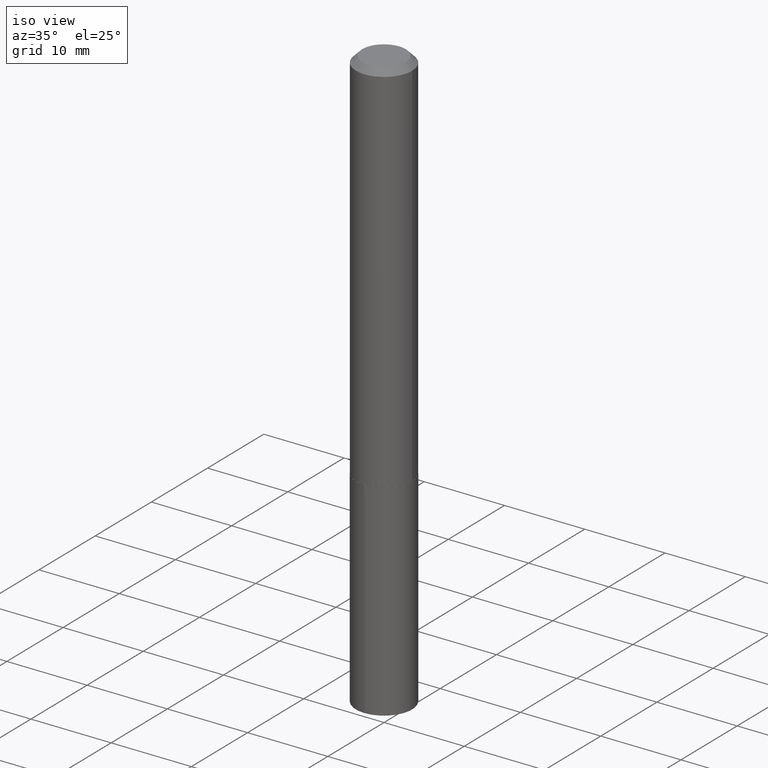
[diagram: clean part render]
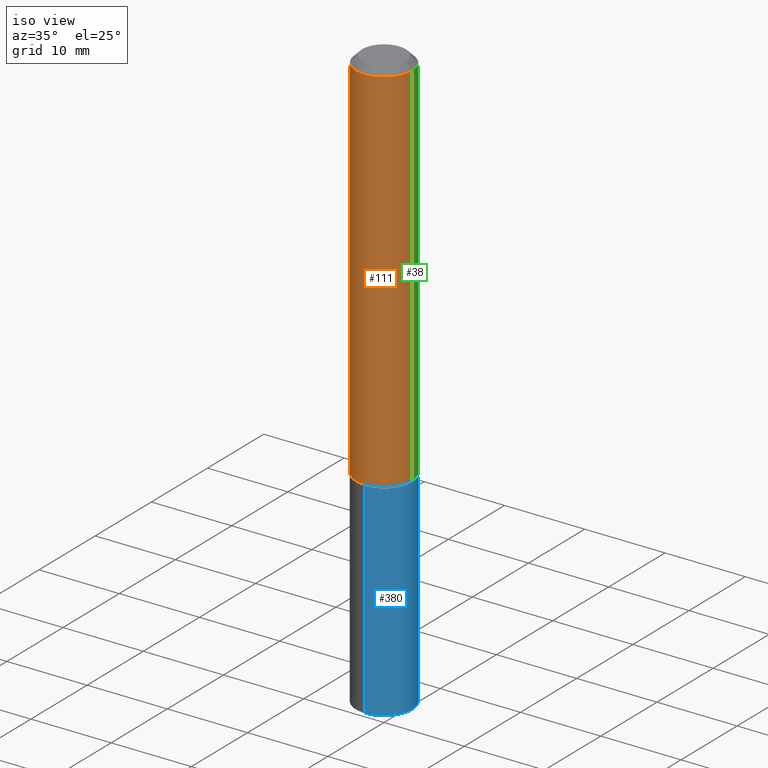
[diagram: same view with three faces highlighted in distinct colors, each labeled with its STEP entity id]
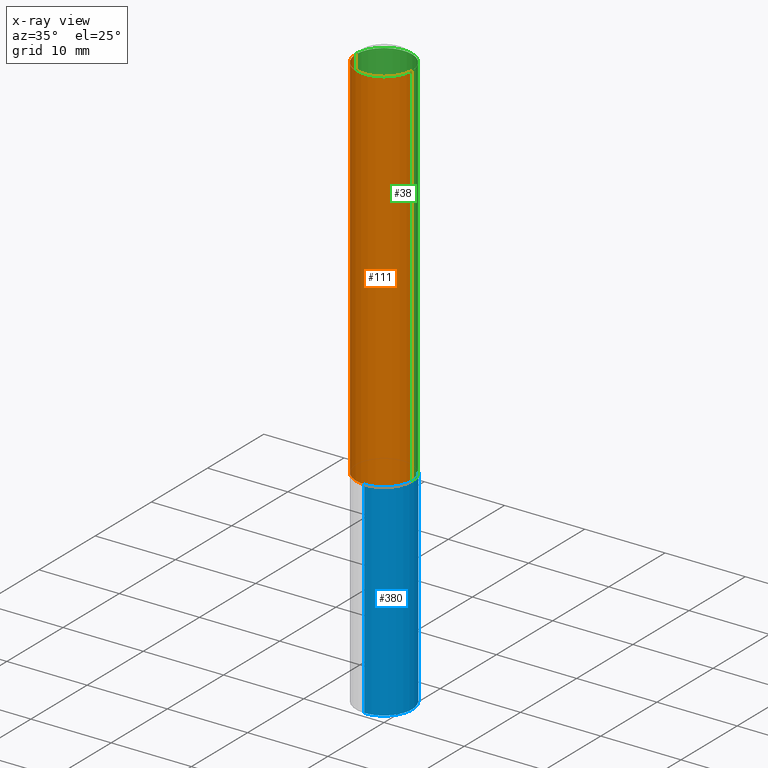
[diagram: x-ray of the same camera — body ghosted, the three highlighted faces saturated]
A machine part, iso view with three faces highlighted in distinct colors.
The next image is the same camera in x-ray (body ghosted, the three faces saturated) — at least one of them is partly hidden behind the body in this view.
Their STEP definitions:

[orange] entity #111 — the highlighted cylindrical surface (edge-blend (fillet) strip) has radius 3.5001 mm, axis along (-0, 0, 1).
#2 = CARTESIAN_POINT ( 'NONE',  ( 0.1378000000000001446, -9.622522569851684631E-16, 6.719371597046805543E-30 ) ) ;
#9 = EDGE_CURVE ( 'NONE', #267, #35, #234, .T. ) ;
#13 = VECTOR ( 'NONE', #237, 39.37007874015748143 ) ;
#15 = VECTOR ( 'NONE', #228, 39.37007874015748143 ) ;
#34 = FACE_OUTER_BOUND ( 'NONE', #70, .T. ) ;
#35 = VERTEX_POINT ( 'NONE', #172 ) ;
#40 = DIRECTION ( 'NONE',  ( 1.000000000000000000, -6.982962677686265922E-15, 4.876176775795935232E-29 ) ) ;
#49 = CARTESIAN_POINT ( 'NONE',  ( -0.1378000000000001446, 9.791278898774190835E-16, -6.778292554371267040E-30 ) ) ;
#58 = EDGE_CURVE ( 'NONE', #267, #170, #311, .T. ) ;
#70 = EDGE_LOOP ( 'NONE', ( #355, #379, #358, #124 ) ) ;
#89 = DIRECTION ( 'NONE',  ( -2.445468806185136597E-29, 3.491481338843145583E-15, 1.000000000000000000 ) ) ;
#109 = DIRECTION ( 'NONE',  ( -2.445468806185136597E-29, 3.491481338843145583E-15, 1.000000000000000000 ) ) ;
#111 = ADVANCED_FACE ( 'NONE', ( #34 ), #120, .T. ) ;
#113 = CIRCLE ( 'NONE', #199, 0.1378000000000000058 ) ;
#115 = CARTESIAN_POINT ( 'NONE',  ( 7.642090019328599159E-31, -1.091087918388489774E-16, -0.03125000000000019429 ) ) ;
#120 = CYLINDRICAL_SURFACE ( 'NONE', #250, 0.1378000000000001446 ) ;
#121 = DIRECTION ( 'NONE',  ( 1.000000000000000000, -6.982962677686267499E-15, 0.000000000000000000 ) ) ;
#124 = ORIENTED_EDGE ( 'NONE', *, *, #320, .F. ) ;
#125 = EDGE_CURVE ( 'NONE', #170, #141, #144, .T. ) ;
#141 = VERTEX_POINT ( 'NONE', #198 ) ;
#144 = LINE ( 'NONE', #2, #13 ) ;
#170 = VERTEX_POINT ( 'NONE', #188 ) ;
#172 = CARTESIAN_POINT ( 'NONE',  ( -0.1378000000000000058, -2.304872170404972320E-15, -0.03125000000000019429 ) ) ;
#188 = CARTESIAN_POINT ( 'NONE',  ( 0.1378000000000002279, -7.421143585711104338E-15, -1.849900000000000100 ) ) ;
#198 = CARTESIAN_POINT ( 'NONE',  ( 0.1378000000000000058, -1.071361048824016578E-15, -0.03125000000000019429 ) ) ;
#199 = AXIS2_PLACEMENT_3D ( 'NONE', #115, #337, #121 ) ;
#228 = DIRECTION ( 'NONE',  ( -2.445468806185136877E-29, 3.491481338843145188E-15, 1.000000000000000000 ) ) ;
#234 = LINE ( 'NONE', #49, #15 ) ;
#237 = DIRECTION ( 'NONE',  ( -2.445468806185136877E-29, 3.491481338843145188E-15, 1.000000000000000000 ) ) ;
#250 = AXIS2_PLACEMENT_3D ( 'NONE', #308, #89, #40 ) ;
#256 = CARTESIAN_POINT ( 'NONE',  ( 4.523872744561884592E-29, -6.458891328725935284E-15, -1.849900000000000100 ) ) ;
#267 = VERTEX_POINT ( 'NONE', #307 ) ;
#307 = CARTESIAN_POINT ( 'NONE',  ( -0.1378000000000002279, -5.479763438848515411E-15, -1.849900000000000100 ) ) ;
#308 = CARTESIAN_POINT ( 'NONE',  ( 0.000000000000000000, 0.000000000000000000, 0.000000000000000000 ) ) ;
#311 = CIRCLE ( 'NONE', #339, 0.1378000000000002279 ) ;
#320 = EDGE_CURVE ( 'NONE', #35, #141, #113, .T. ) ;
#337 = DIRECTION ( 'NONE',  ( -2.445468806185136597E-29, 3.491481338843145583E-15, 1.000000000000000000 ) ) ;
#339 = AXIS2_PLACEMENT_3D ( 'NONE', #256, #109, #390 ) ;
#355 = ORIENTED_EDGE ( 'NONE', *, *, #9, .F. ) ;
#358 = ORIENTED_EDGE ( 'NONE', *, *, #125, .T. ) ;
#379 = ORIENTED_EDGE ( 'NONE', *, *, #58, .T. ) ;
#390 = DIRECTION ( 'NONE',  ( 1.000000000000000000, -6.982962677686269077E-15, 0.000000000000000000 ) ) ;

[blue] entity #380 — the highlighted cylindrical surface (edge-blend (fillet) strip) has radius 3.5001 mm, axis along (-0, 0, 1).
#10 = CARTESIAN_POINT ( 'NONE',  ( 9.791278898774879117E-16, 0.1377999999999900138, -2.863244901718118296 ) ) ;
#12 = ORIENTED_EDGE ( 'NONE', *, *, #157, .T. ) ;
#14 = VERTEX_POINT ( 'NONE', #168 ) ;
#23 = CIRCLE ( 'NONE', #145, 0.1378000000000000058 ) ;
#45 = DIRECTION ( 'NONE',  ( -2.444922659383854649E-29, 3.492263452147326166E-15, 1.000000000000000000 ) ) ;
#48 = LINE ( 'NONE', #131, #149 ) ;
#59 = DIRECTION ( 'NONE',  ( -2.444922659383854929E-29, 3.492263452147326560E-15, 1.000000000000000000 ) ) ;
#63 = CARTESIAN_POINT ( 'NONE',  ( 7.001422929617015840E-29, -9.997758302359288598E-15, -2.863244901718117408 ) ) ;
#67 = AXIS2_PLACEMENT_3D ( 'NONE', #290, #258, #381 ) ;
#85 = VECTOR ( 'NONE', #317, 39.37007874015748143 ) ;
#131 = CARTESIAN_POINT ( 'NONE',  ( 9.791278898774632598E-16, 0.1377999999999935665, -1.850400000000000489 ) ) ;
#132 = ORIENTED_EDGE ( 'NONE', *, *, #153, .F. ) ;
#135 = EDGE_CURVE ( 'NONE', #184, #309, #23, .T. ) ;
#136 = ORIENTED_EDGE ( 'NONE', *, *, #204, .F. ) ;
#145 = AXIS2_PLACEMENT_3D ( 'NONE', #63, #176, #304 ) ;
#147 = CARTESIAN_POINT ( 'NONE',  ( -9.622522569851223147E-16, -0.1378000000000064729, -1.850399999999999379 ) ) ;
#149 = VECTOR ( 'NONE', #45, 39.37007874015748143 ) ;
#153 = EDGE_CURVE ( 'NONE', #184, #366, #219, .T. ) ;
#157 = EDGE_CURVE ( 'NONE', #309, #14, #48, .T. ) ;
#168 = CARTESIAN_POINT ( 'NONE',  ( 9.791278898774883061E-16, 0.1377999999999935665, -1.850400000000000489 ) ) ;
#171 = FACE_OUTER_BOUND ( 'NONE', #386, .T. ) ;
#176 = DIRECTION ( 'NONE',  ( -2.444922659383854929E-29, 3.492263452147326560E-15, 1.000000000000000000 ) ) ;
#184 = VERTEX_POINT ( 'NONE', #378 ) ;
#187 = AXIS2_PLACEMENT_3D ( 'NONE', #331, #59, #301 ) ;
#193 = CARTESIAN_POINT ( 'NONE',  ( -9.622522569851223147E-16, -0.1378000000000064729, -1.850399999999999379 ) ) ;
#203 = CYLINDRICAL_SURFACE ( 'NONE', #187, 0.1378000000000000058 ) ;
#204 = EDGE_CURVE ( 'NONE', #366, #14, #233, .T. ) ;
#219 = LINE ( 'NONE', #193, #85 ) ;
#233 = CIRCLE ( 'NONE', #67, 0.1378000000000000058 ) ;
#258 = DIRECTION ( 'NONE',  ( -2.444922659383854929E-29, 3.492263452147326560E-15, 1.000000000000000000 ) ) ;
#282 = ORIENTED_EDGE ( 'NONE', *, *, #135, .T. ) ;
#290 = CARTESIAN_POINT ( 'NONE',  ( 4.525095478964976833E-29, -6.460637069395356787E-15, -1.850400000000000045 ) ) ;
#301 = DIRECTION ( 'NONE',  ( -6.982962677686265922E-15, -1.000000000000000000, 3.964946289788480896E-15 ) ) ;
#304 = DIRECTION ( 'NONE',  ( -6.982962677686265922E-15, -1.000000000000000000, 3.964946289788480896E-15 ) ) ;
#309 = VERTEX_POINT ( 'NONE', #10 ) ;
#317 = DIRECTION ( 'NONE',  ( -2.444922659383854649E-29, 3.492263452147326166E-15, 1.000000000000000000 ) ) ;
#331 = CARTESIAN_POINT ( 'NONE',  ( 4.525095478964976833E-29, -6.460637069395356787E-15, -1.850400000000000045 ) ) ;
#366 = VERTEX_POINT ( 'NONE', #147 ) ;
#378 = CARTESIAN_POINT ( 'NONE',  ( -9.622522569850974656E-16, -0.1378000000000099978, -2.863244901718116964 ) ) ;
#380 = ADVANCED_FACE ( 'NONE', ( #171 ), #203, .T. ) ;
#381 = DIRECTION ( 'NONE',  ( -6.982962677686265922E-15, -1.000000000000000000, 3.964946289788480896E-15 ) ) ;
#386 = EDGE_LOOP ( 'NONE', ( #282, #12, #136, #132 ) ) ;

[green] entity #38 — the highlighted cylindrical surface (edge-blend (fillet) strip) has radius 3.5001 mm, axis along (-0, 0, 1).
#1 = CIRCLE ( 'NONE', #181, 0.1378000000000000058 ) ;
#2 = CARTESIAN_POINT ( 'NONE',  ( 0.1378000000000001446, -9.622522569851684631E-16, 6.719371597046805543E-30 ) ) ;
#9 = EDGE_CURVE ( 'NONE', #267, #35, #234, .T. ) ;
#13 = VECTOR ( 'NONE', #237, 39.37007874015748143 ) ;
#15 = VECTOR ( 'NONE', #228, 39.37007874015748143 ) ;
#25 = DIRECTION ( 'NONE',  ( -2.445468806185136597E-29, 3.491481338843145583E-15, 1.000000000000000000 ) ) ;
#29 = CARTESIAN_POINT ( 'NONE',  ( 7.642090019328599159E-31, -1.091087918388489774E-16, -0.03125000000000019429 ) ) ;
#35 = VERTEX_POINT ( 'NONE', #172 ) ;
#38 = ADVANCED_FACE ( 'NONE', ( #266 ), #330, .T. ) ;
#47 = EDGE_LOOP ( 'NONE', ( #100, #212, #56, #154 ) ) ;
#49 = CARTESIAN_POINT ( 'NONE',  ( -0.1378000000000001446, 9.791278898774190835E-16, -6.778292554371267040E-30 ) ) ;
#56 = ORIENTED_EDGE ( 'NONE', *, *, #238, .F. ) ;
#60 = CIRCLE ( 'NONE', #95, 0.1378000000000002279 ) ;
#62 = DIRECTION ( 'NONE',  ( -2.445468806185136597E-29, 3.491481338843145583E-15, 1.000000000000000000 ) ) ;
#64 = DIRECTION ( 'NONE',  ( 1.000000000000000000, -6.982962677686267499E-15, 0.000000000000000000 ) ) ;
#71 = EDGE_CURVE ( 'NONE', #170, #267, #60, .T. ) ;
#74 = CARTESIAN_POINT ( 'NONE',  ( 4.523872744561884592E-29, -6.458891328725935284E-15, -1.849900000000000100 ) ) ;
#80 = DIRECTION ( 'NONE',  ( 1.000000000000000000, -6.982962677686269077E-15, 0.000000000000000000 ) ) ;
#95 = AXIS2_PLACEMENT_3D ( 'NONE', #74, #382, #80 ) ;
#100 = ORIENTED_EDGE ( 'NONE', *, *, #71, .T. ) ;
#125 = EDGE_CURVE ( 'NONE', #170, #141, #144, .T. ) ;
#141 = VERTEX_POINT ( 'NONE', #198 ) ;
#144 = LINE ( 'NONE', #2, #13 ) ;
#154 = ORIENTED_EDGE ( 'NONE', *, *, #125, .F. ) ;
#170 = VERTEX_POINT ( 'NONE', #188 ) ;
#172 = CARTESIAN_POINT ( 'NONE',  ( -0.1378000000000000058, -2.304872170404972320E-15, -0.03125000000000019429 ) ) ;
#181 = AXIS2_PLACEMENT_3D ( 'NONE', #29, #62, #64 ) ;
#188 = CARTESIAN_POINT ( 'NONE',  ( 0.1378000000000002279, -7.421143585711104338E-15, -1.849900000000000100 ) ) ;
#198 = CARTESIAN_POINT ( 'NONE',  ( 0.1378000000000000058, -1.071361048824016578E-15, -0.03125000000000019429 ) ) ;
#212 = ORIENTED_EDGE ( 'NONE', *, *, #9, .T. ) ;
#223 = AXIS2_PLACEMENT_3D ( 'NONE', #352, #25, #322 ) ;
#228 = DIRECTION ( 'NONE',  ( -2.445468806185136877E-29, 3.491481338843145188E-15, 1.000000000000000000 ) ) ;
#234 = LINE ( 'NONE', #49, #15 ) ;
#237 = DIRECTION ( 'NONE',  ( -2.445468806185136877E-29, 3.491481338843145188E-15, 1.000000000000000000 ) ) ;
#238 = EDGE_CURVE ( 'NONE', #141, #35, #1, .T. ) ;
#266 = FACE_OUTER_BOUND ( 'NONE', #47, .T. ) ;
#267 = VERTEX_POINT ( 'NONE', #307 ) ;
#307 = CARTESIAN_POINT ( 'NONE',  ( -0.1378000000000002279, -5.479763438848515411E-15, -1.849900000000000100 ) ) ;
#322 = DIRECTION ( 'NONE',  ( 1.000000000000000000, -6.982962677686265922E-15, 4.876176775795935232E-29 ) ) ;
#330 = CYLINDRICAL_SURFACE ( 'NONE', #223, 0.1378000000000001446 ) ;
#352 = CARTESIAN_POINT ( 'NONE',  ( 0.000000000000000000, 0.000000000000000000, 0.000000000000000000 ) ) ;
#382 = DIRECTION ( 'NONE',  ( -2.445468806185136597E-29, 3.491481338843145583E-15, 1.000000000000000000 ) ) ;